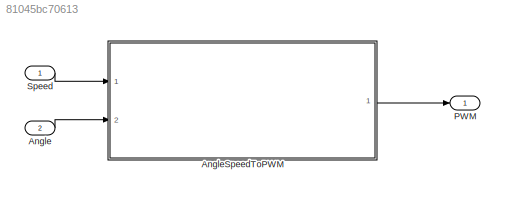
MODEL slx_81045bc70613
KIND model
CONFIG AbsTol = auto
CONFIG EnableMultiTasking = off
CONFIG FixedStep = 1
CONFIG MaxStep = auto
CONFIG MinStep = auto
CONFIG RelTol = 1e-3
CONFIG SampleTimeConstraint = Unconstrained
CONFIG Solver = FixedStepDiscrete
CONFIG SolverName = FixedStepDiscrete
CONFIG StartTime = 0.0
CONFIG StopTime = 50000
BLOCK [Inport] Angle
  IconDisplay = Port number
  Port = 2
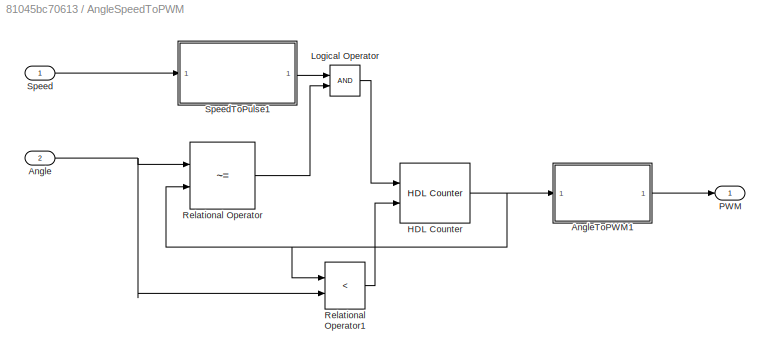
BLOCK [SubSystem] AngleSpeedToPWM
  Ports = [2, 1]
  RequestExecContextInheritance = off
  Variant = off
BLOCK [Inport] AngleSpeedToPWM/Angle
  IconDisplay = Port number
  Port = 2
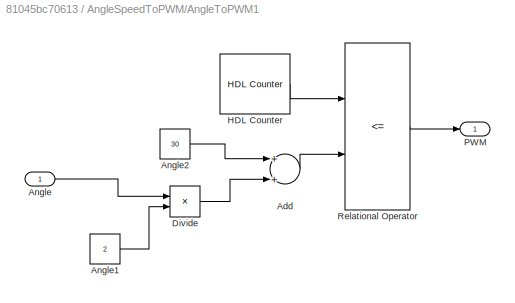
BLOCK [SubSystem] AngleSpeedToPWM/AngleToPWM1
  Ports = [1, 1]
  RequestExecContextInheritance = off
  Variant = off
BLOCK [Sum] AngleSpeedToPWM/AngleToPWM1/Add
  InputSameDT = off
  OutDataTypeStr = Inherit: Inherit via internal rule
  Ports = [2, 1]
  SaturateOnIntegerOverflow = off
BLOCK [Inport] AngleSpeedToPWM/AngleToPWM1/Angle
  IconDisplay = Port number
BLOCK [Constant] AngleSpeedToPWM/AngleToPWM1/Angle1
  OutDataTypeStr = uint8
  Value = 2
BLOCK [Constant] AngleSpeedToPWM/AngleToPWM1/Angle2
  OutDataTypeStr = uint8
  Value = 30
BLOCK [Product] AngleSpeedToPWM/AngleToPWM1/Divide
  InputSameDT = off
  Inputs = */
  OutDataTypeStr = Inherit: Inherit via internal rule
  Ports = [2, 1]
  RndMeth = Floor
  SaturateOnIntegerOverflow = off
BLOCK [Reference] AngleSpeedToPWM/AngleToPWM1/HDL Counter  REF=hdlsllib/HDL Operations/HDL Counter
  Ports = [0, 1]
  SourceBlock = hdlsllib/HDL Operations/HDL Counter
  SourceProductBaseCode = HD
  SourceProductName = HDL Coder
  SourceType = HDL Counter
BLOCK [Outport] AngleSpeedToPWM/AngleToPWM1/PWM
  IconDisplay = Port number
BLOCK [RelationalOperator] AngleSpeedToPWM/AngleToPWM1/Relational Operator
  InputSameDT = off
  Operator = <=
  OutDataTypeStr = boolean
  Ports = [2, 1]
  RndMeth = Simplest
BLOCK [Reference] AngleSpeedToPWM/HDL Counter  REF=hdlsllib/HDL Operations/HDL Counter
  Ports = [2, 1]
  SourceBlock = hdlsllib/HDL Operations/HDL Counter
  SourceProductBaseCode = HD
  SourceProductName = HDL Coder
  SourceType = HDL Counter
BLOCK [Logic] AngleSpeedToPWM/Logical Operator
  AllPortsSameDT = off
  OutDataTypeStr = boolean
  Ports = [2, 1]
BLOCK [Outport] AngleSpeedToPWM/PWM
  IconDisplay = Port number
BLOCK [RelationalOperator] AngleSpeedToPWM/Relational Operator
  InputSameDT = off
  Operator = ~=
  OutDataTypeStr = boolean
  Ports = [2, 1]
  RndMeth = Simplest
BLOCK [RelationalOperator] AngleSpeedToPWM/Relational Operator1
  InputSameDT = off
  Operator = <
  OutDataTypeStr = boolean
  Ports = [2, 1]
  RndMeth = Simplest
BLOCK [Inport] AngleSpeedToPWM/Speed
  IconDisplay = Port number
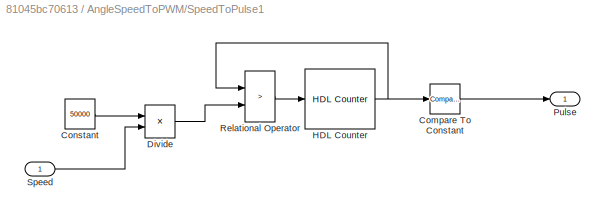
BLOCK [SubSystem] AngleSpeedToPWM/SpeedToPulse1
  Ports = [1, 1]
  RequestExecContextInheritance = off
  Variant = off
BLOCK [Reference] AngleSpeedToPWM/SpeedToPulse1/Compare To Constant  REF=simulink/Logic and Bit
Operations/Compare
To Constant
  Ports = [1, 1]
  SourceBlock = simulink/Logic and Bit\nOperations/Compare\nTo Constant
  SourceProductBaseCode = SL
  SourceProductName = Simulink
  SourceType = Compare To Constant
BLOCK [Constant] AngleSpeedToPWM/SpeedToPulse1/Constant
  Value = 50000
BLOCK [Product] AngleSpeedToPWM/SpeedToPulse1/Divide
  InputSameDT = off
  Inputs = */
  OutDataTypeStr = Inherit: Inherit via internal rule
  Ports = [2, 1]
BLOCK [Reference] AngleSpeedToPWM/SpeedToPulse1/HDL Counter  REF=hdlsllib/HDL Operations/HDL Counter
  Ports = [1, 1]
  SourceBlock = hdlsllib/HDL Operations/HDL Counter
  SourceProductBaseCode = HD
  SourceProductName = HDL Coder
  SourceType = HDL Counter
BLOCK [Outport] AngleSpeedToPWM/SpeedToPulse1/Pulse
  IconDisplay = Port number
BLOCK [RelationalOperator] AngleSpeedToPWM/SpeedToPulse1/Relational Operator
  InputSameDT = off
  Operator = >
  OutDataTypeStr = boolean
  Ports = [2, 1]
BLOCK [Inport] AngleSpeedToPWM/SpeedToPulse1/Speed
  IconDisplay = Port number
  OutDataTypeStr = uint8
BLOCK [Outport] PWM
  IconDisplay = Port number
BLOCK [Inport] Speed
  IconDisplay = Port number
LINE Angle:1 -> AngleSpeedToPWM:2
NET AngleSpeedToPWM/Angle:1 -> AngleSpeedToPWM/Relational Operator1:2, AngleSpeedToPWM/Relational Operator:1
LINE AngleSpeedToPWM/AngleToPWM1/Add:1 -> AngleSpeedToPWM/AngleToPWM1/Relational Operator:2
LINE AngleSpeedToPWM/AngleToPWM1/Angle1:1 -> AngleSpeedToPWM/AngleToPWM1/Divide:2
LINE AngleSpeedToPWM/AngleToPWM1/Angle2:1 -> AngleSpeedToPWM/AngleToPWM1/Add:1
LINE AngleSpeedToPWM/AngleToPWM1/Angle:1 -> AngleSpeedToPWM/AngleToPWM1/Divide:1
LINE AngleSpeedToPWM/AngleToPWM1/Divide:1 -> AngleSpeedToPWM/AngleToPWM1/Add:2
LINE AngleSpeedToPWM/AngleToPWM1/HDL Counter:1 -> AngleSpeedToPWM/AngleToPWM1/Relational Operator:1
LINE AngleSpeedToPWM/AngleToPWM1/Relational Operator:1 -> AngleSpeedToPWM/AngleToPWM1/PWM:1
LINE AngleSpeedToPWM/AngleToPWM1:1 -> AngleSpeedToPWM/PWM:1
NET AngleSpeedToPWM/HDL Counter:1 -> AngleSpeedToPWM/AngleToPWM1:1, AngleSpeedToPWM/Relational Operator1:1, AngleSpeedToPWM/Relational Operator:2
LINE AngleSpeedToPWM/Logical Operator:1 -> AngleSpeedToPWM/HDL Counter:1
LINE AngleSpeedToPWM/Relational Operator1:1 -> AngleSpeedToPWM/HDL Counter:2
LINE AngleSpeedToPWM/Relational Operator:1 -> AngleSpeedToPWM/Logical Operator:2
LINE AngleSpeedToPWM/Speed:1 -> AngleSpeedToPWM/SpeedToPulse1:1
LINE AngleSpeedToPWM/SpeedToPulse1/Compare To Constant:1 -> AngleSpeedToPWM/SpeedToPulse1/Pulse:1
LINE AngleSpeedToPWM/SpeedToPulse1/Constant:1 -> AngleSpeedToPWM/SpeedToPulse1/Divide:1
LINE AngleSpeedToPWM/SpeedToPulse1/Divide:1 -> AngleSpeedToPWM/SpeedToPulse1/Relational Operator:2
NET AngleSpeedToPWM/SpeedToPulse1/HDL Counter:1 -> AngleSpeedToPWM/SpeedToPulse1/Compare To Constant:1, AngleSpeedToPWM/SpeedToPulse1/Relational Operator:1
LINE AngleSpeedToPWM/SpeedToPulse1/Relational Operator:1 -> AngleSpeedToPWM/SpeedToPulse1/HDL Counter:1
LINE AngleSpeedToPWM/SpeedToPulse1/Speed:1 -> AngleSpeedToPWM/SpeedToPulse1/Divide:2
LINE AngleSpeedToPWM/SpeedToPulse1:1 -> AngleSpeedToPWM/Logical Operator:1
LINE AngleSpeedToPWM:1 -> PWM:1
LINE Speed:1 -> AngleSpeedToPWM:1
note: NET lines group one-source signal fan-out (src -> all destinations, sorted); 1:1 wires keep LINE
